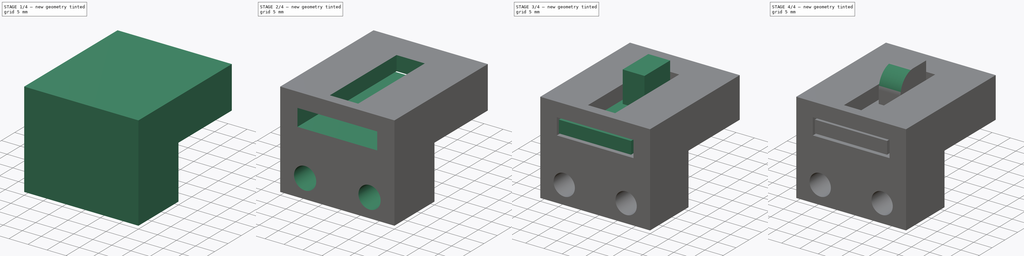
[diagram: build sequence overview — one tinted view per stage of 4, left to right]
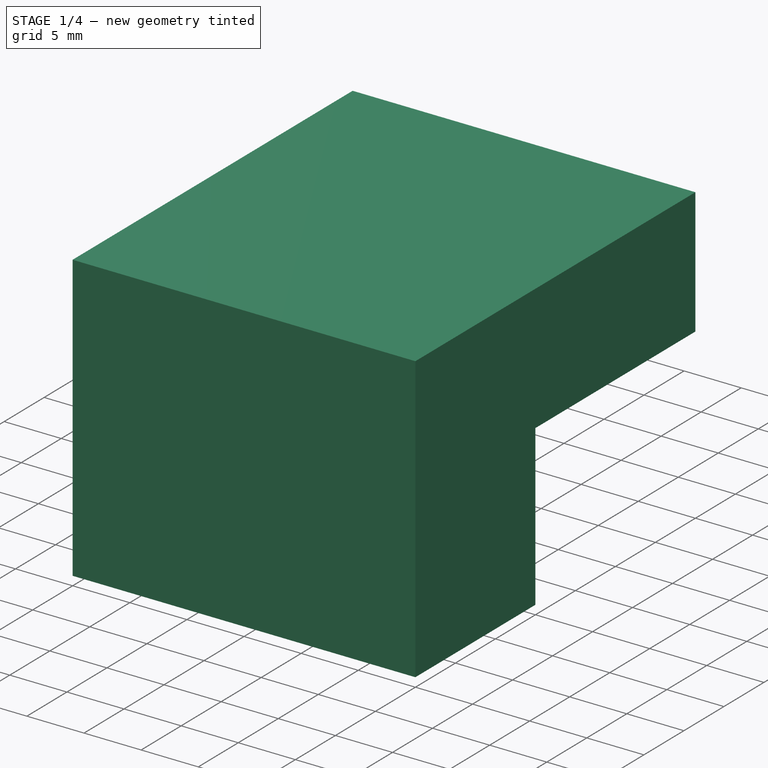
[diagram: stage 1 of 4 — iso view after this stage's code; geometry added in this stage tinted green]
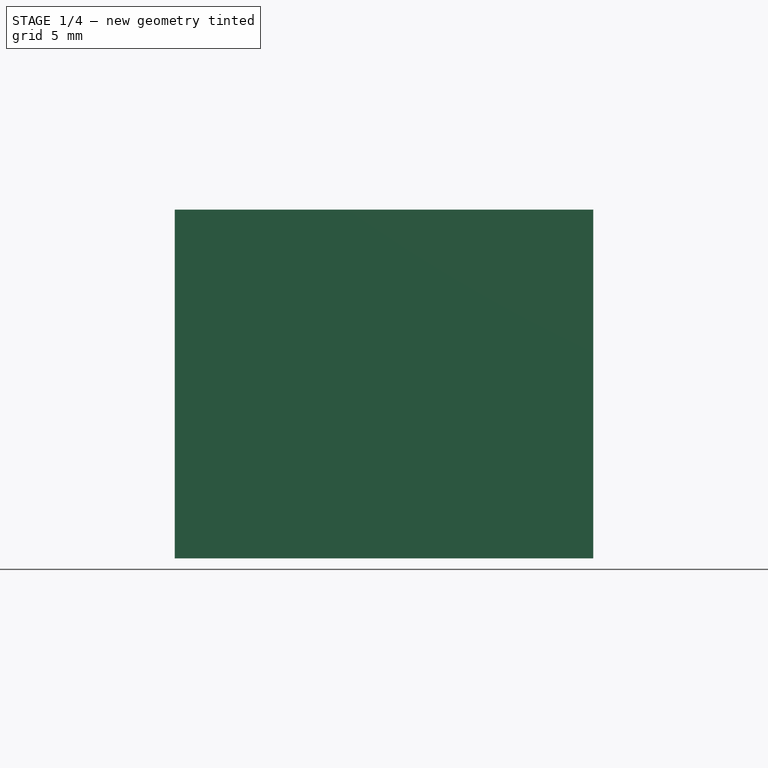
[diagram: stage 1 of 4 — front view after this stage's code; geometry added in this stage tinted green]
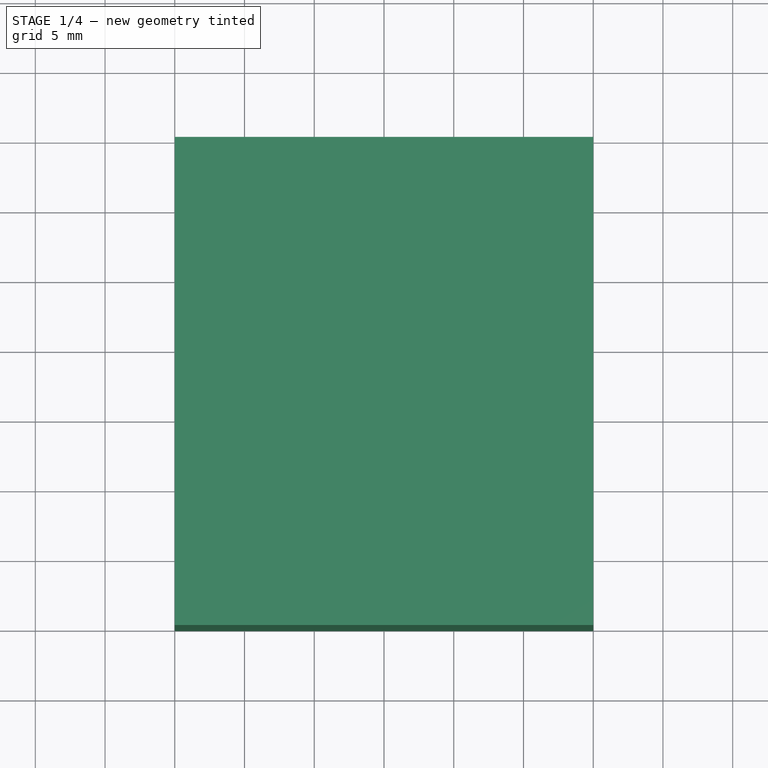
[diagram: stage 1 of 4 — top view after this stage's code; geometry added in this stage tinted green]
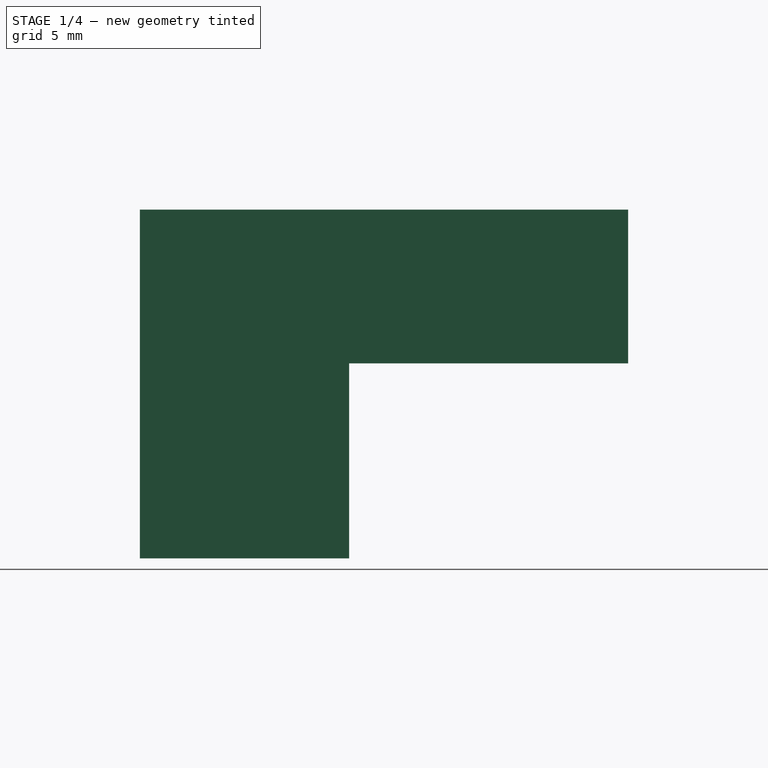
[diagram: stage 1 of 4 — right view after this stage's code; geometry added in this stage tinted green]
FCSTD DOCUMENT  (FreeCAD 0.16R6705 (Git))
Label: chiavistello
License: All rights reserved
LicenseURL: http://it.wikipedia.org/wiki/<copyright redacted>
objects: Sketcher::SketchObject×7, PartDesign::Pad×4, PartDesign::Pocket×3, Part::MultiFuse×2, PartDesign::Fillet×1
note: 24 computed .brp shape members not serialized (recipe doc carries the construction recipe); baked Part::Feature solids carry a one-line shape summary decoded from their .brp

FEATURE [Sketcher::SketchObject] Sketch
  sketch-geometry (4):
    g0: LineSegment StartX=-15 StartY=0 StartZ=0 EndX=15 EndY=0 EndZ=0
    g1: LineSegment StartX=15 StartY=0 StartZ=0 EndX=15 EndY=15 EndZ=0
    g2: LineSegment StartX=15 StartY=15 StartZ=0 EndX=-15 EndY=15 EndZ=0
    g3: LineSegment StartX=-15 StartY=15 StartZ=0 EndX=-15 EndY=0 EndZ=0
  constraints (12):
    c: Coincident(g0,g1)
    c: Coincident(g1,g2)
    c: Coincident(g2,g3)
    c: Coincident(g3,g0)
    c: Horizontal(g0)
    c: Horizontal(g2)
    c: Vertical(g1)
    c: Vertical(g3)
    c: DistanceX(g0,g0) = 30
    c: Symmetric(g0,g0,g-2)
    c: DistanceY(g0,g2) = 15
    c: PointOnObject(g0,g-1)
FEATURE [PartDesign::Pad] Pad
  Length = 25
  Length2 = 100
  Sketch = -> Sketch
  Type = 0
FEATURE [Sketcher::SketchObject] Sketch001
  ExternalGeometry = -> [Pad]
  Placement = pos=(0,15,0) rot=(0,0.707107,0.707107;3.14159rad)
  Support = -> Pad [Face3]
  sketch-geometry (4):
    g0: LineSegment StartX=-15 StartY=25 StartZ=0 EndX=15 EndY=25 EndZ=0
    g1: LineSegment StartX=15 StartY=25 StartZ=0 EndX=15 EndY=13.9789 EndZ=0
    g2: LineSegment StartX=15 StartY=13.9789 StartZ=0 EndX=-15 EndY=13.9789 EndZ=0
    g3: LineSegment StartX=-15 StartY=13.9789 StartZ=0 EndX=-15 EndY=25 EndZ=0
  constraints (10):
    c: Coincident(g0,g1)
    c: Coincident(g1,g2)
    c: Coincident(g2,g3)
    c: Coincident(g3,g0)
    c: Horizontal(g0)
    c: Horizontal(g2)
    c: Vertical(g1)
    c: Vertical(g3)
    c: PointOnObject(g1,g-4)
    c: PointOnObject(g2,g-5)
FEATURE [PartDesign::Pad] Pad001
  Length = 20
  Length2 = 100
  Sketch = -> Sketch001
  Type = 0
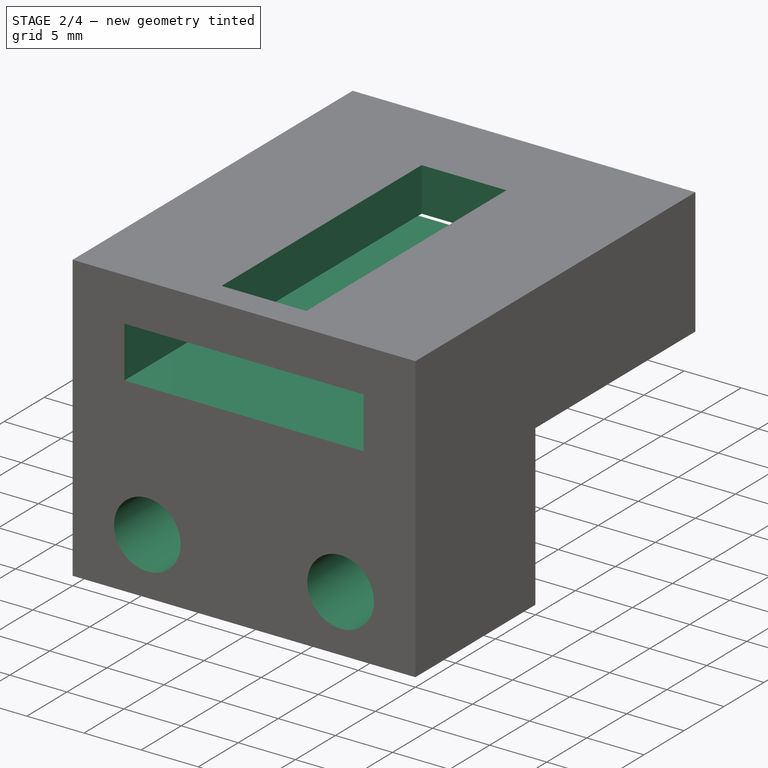
[diagram: stage 2 of 4 — iso view after this stage's code; geometry added in this stage tinted green]
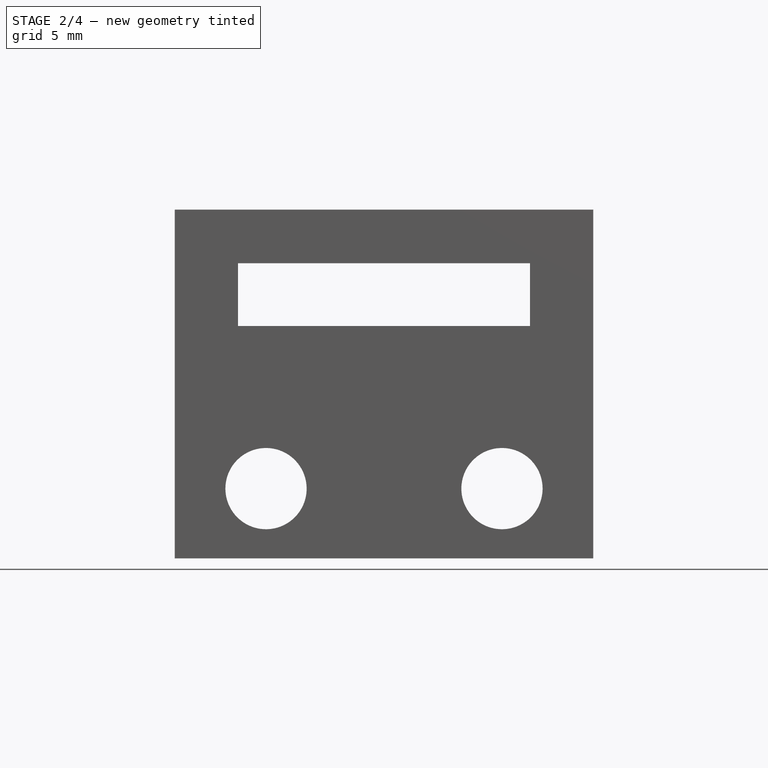
[diagram: stage 2 of 4 — front view after this stage's code; geometry added in this stage tinted green]
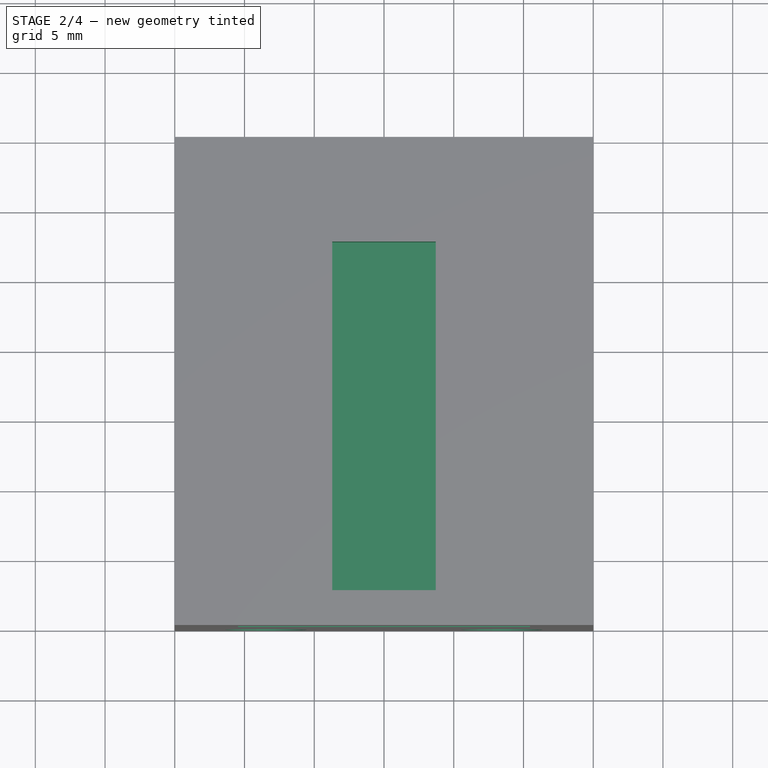
[diagram: stage 2 of 4 — top view after this stage's code; geometry added in this stage tinted green]
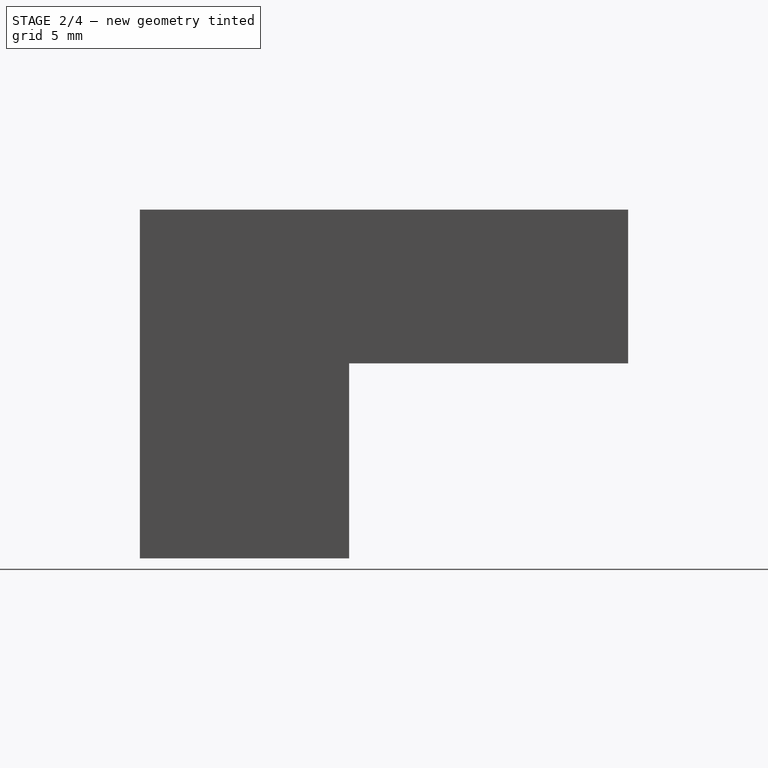
[diagram: stage 2 of 4 — right view after this stage's code; geometry added in this stage tinted green]
FEATURE [PartDesign::Pocket] Pocket
  Length = 25
  Midplane = true
  Sketch = -> Sketch002
  Type = 0
FEATURE [Sketcher::SketchObject] Sketch005
  ExternalGeometry = -> [Pocket]
  Placement = pos=(0,35,0) rot=(0,0.707107,0.707107;3.14159rad)
  Support = -> Pocket [Face16]
  sketch-geometry (4):
    g0: LineSegment StartX=-10.4717 StartY=21.1596 StartZ=0 EndX=10.4717 EndY=21.1596 EndZ=0
    g1: LineSegment StartX=10.4717 StartY=21.1596 StartZ=0 EndX=10.4717 EndY=16.6596 EndZ=0
    g2: LineSegment StartX=10.4717 StartY=16.6596 StartZ=0 EndX=-10.4717 EndY=16.6596 EndZ=0
    g3: LineSegment StartX=-10.4717 StartY=16.6596 StartZ=0 EndX=-10.4717 EndY=21.1596 EndZ=0
  constraints (8):
    c: Coincident(g0,g1)
    c: Coincident(g1,g2)
    c: Coincident(g2,g3)
    c: Coincident(g3,g0)
    c: Horizontal(g0)
    c: Horizontal(g2)
    c: Vertical(g1)
    c: Vertical(g3)
FEATURE [PartDesign::Pocket] Pocket001
  Length = 5
  Sketch = -> Sketch005
  Type = 1
FEATURE [Sketcher::SketchObject] Sketch006
  Placement = pos=(0,15,0) rot=(0,0.707107,0.707107;3.14159rad)
  Support = -> Pocket001 [Face10]
  sketch-geometry (2):
    g0: Circle CenterX=8.45863 CenterY=5 CenterZ=0 NormalX=0 NormalY=0 NormalZ=1 Radius=2.91181
    g1: Circle CenterX=-8.45863 CenterY=5 CenterZ=0 NormalX=0 NormalY=0 NormalZ=1 Radius=2.91181
  constraints (3):
    c: Equal(g1,g0)
    c: DistanceY(g-1,g1) = 5
    c: Symmetric(g1,g0,g-2)
FEATURE [PartDesign::Pocket] Pocket002
  Length = 5
  Sketch = -> Sketch006
  Type = 1
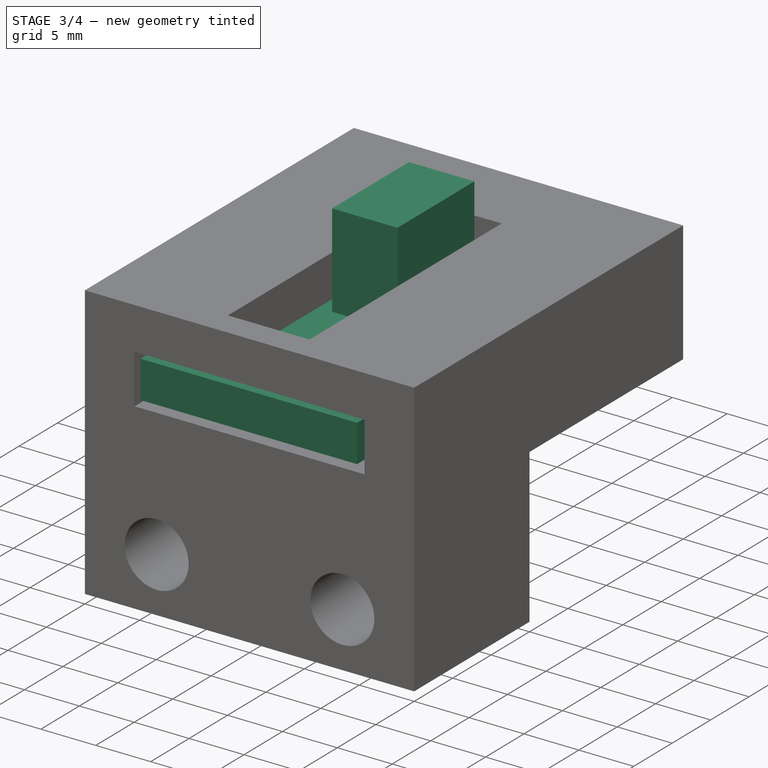
[diagram: stage 3 of 4 — iso view after this stage's code; geometry added in this stage tinted green]
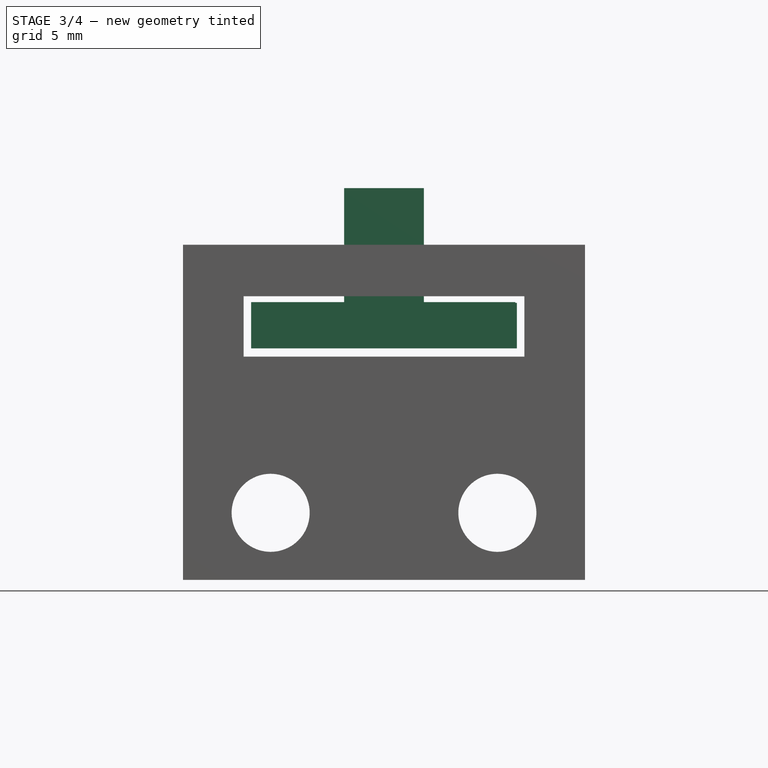
[diagram: stage 3 of 4 — front view after this stage's code; geometry added in this stage tinted green]
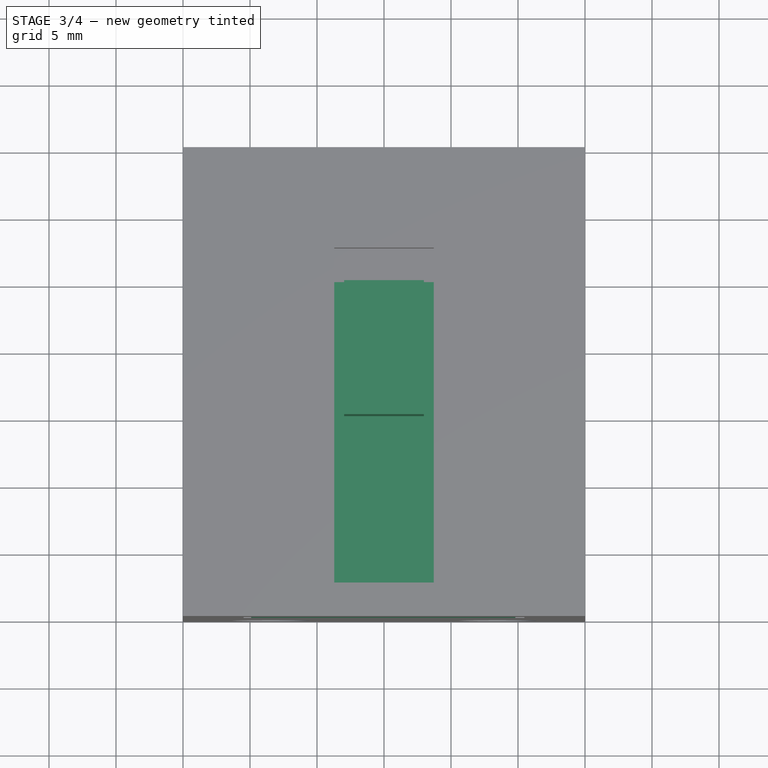
[diagram: stage 3 of 4 — top view after this stage's code; geometry added in this stage tinted green]
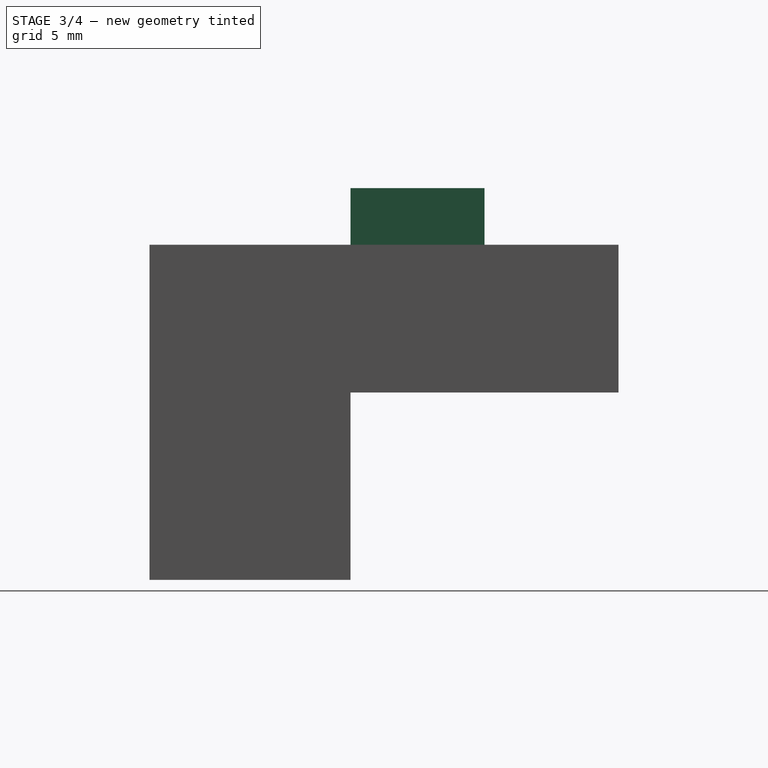
[diagram: stage 3 of 4 — right view after this stage's code; geometry added in this stage tinted green]
FEATURE [Sketcher::SketchObject] Sketch002
  Placement = pos=(0,15,0) rot=(0,0.707107,0.707107;3.14159rad)
  Support = -> Pad001 [Face6]
  sketch-geometry (8):
    g0: LineSegment StartX=-3.71123 StartY=27.7622 StartZ=0 EndX=-3.71123 EndY=21.1596 EndZ=0
    g1: LineSegment StartX=-3.71123 StartY=21.1596 StartZ=0 EndX=-10.4716 EndY=21.1596 EndZ=0
    g2: LineSegment StartX=-10.4716 StartY=21.1596 StartZ=0 EndX=-10.4716 EndY=16.6596 EndZ=0
    g3: LineSegment StartX=3.71123 StartY=27.7622 StartZ=0 EndX=3.71123 EndY=21.1596 EndZ=0
    g4: LineSegment StartX=3.71123 StartY=21.1596 StartZ=0 EndX=10.4716 EndY=21.1596 EndZ=0
    g5: LineSegment StartX=10.4716 StartY=21.1596 StartZ=0 EndX=10.4716 EndY=16.6596 EndZ=0
    g6: LineSegment StartX=-3.71123 StartY=27.7622 StartZ=0 EndX=3.71123 EndY=27.7622 EndZ=0
    g7: LineSegment StartX=-10.4716 StartY=16.6596 StartZ=0 EndX=10.4716 EndY=16.6596 EndZ=0
  constraints (19):
    c: Coincident(g0,g1)
    c: Coincident(g1,g2)
    c: Vertical(g0)
    c: Vertical(g2)
    c: Coincident(g3,g4)
    c: Coincident(g4,g5)
    c: Vertical(g3)
    c: Vertical(g5)
    c: Symmetric(g1,g4,g-2)
    c: Horizontal(g4)
    c: Horizontal(g1)
    c: Symmetric(g3,g0,g-2)
    c: Symmetric(g3,g0,g-2)
    c: Coincident(g6,g3)
    c: Coincident(g0,g6)
    c: Coincident(g2,g7)
    c: Coincident(g5,g7)
    c: Horizontal(g7)
    c: DistanceY(g5,g4) = 4.5
FEATURE [Sketcher::SketchObject] Sketch003
  Placement = pos=(0,15,0) rot=(-1,0,0;4.71239rad)
  sketch-geometry (8):
    g0: LineSegment StartX=-2.97727 StartY=29.225 StartZ=0 EndX=-2.97727 EndY=20.6674 EndZ=0
    g1: LineSegment StartX=-2.97727 StartY=20.6674 StartZ=0 EndX=-9.91131 EndY=20.6674 EndZ=0
    g2: LineSegment StartX=-9.91131 StartY=20.6674 StartZ=0 EndX=-9.91131 EndY=17.2674 EndZ=0
    g3: LineSegment StartX=2.97727 StartY=29.225 StartZ=0 EndX=2.97727 EndY=20.6674 EndZ=0
    g4: LineSegment StartX=2.97727 StartY=20.6674 StartZ=0 EndX=9.91131 EndY=20.6674 EndZ=0
    g5: LineSegment StartX=9.91131 StartY=20.6674 StartZ=0 EndX=9.91131 EndY=17.2674 EndZ=0
    g6: LineSegment StartX=-2.97727 StartY=29.225 StartZ=0 EndX=2.97727 EndY=29.225 EndZ=0
    g7: LineSegment StartX=-9.91131 StartY=17.2674 StartZ=0 EndX=9.91131 EndY=17.2674 EndZ=0
  constraints (19):
    c: Coincident(g0,g1)
    c: Coincident(g1,g2)
    c: Vertical(g0)
    c: Vertical(g2)
    c: Coincident(g3,g4)
    c: Coincident(g4,g5)
    c: Vertical(g3)
    c: Vertical(g5)
    c: Symmetric(g1,g4,g-2)
    c: Horizontal(g4)
    c: Horizontal(g1)
    c: Symmetric(g3,g0,g-2)
    c: Symmetric(g3,g0,g-2)
    c: Coincident(g6,g3)
    c: Coincident(g0,g6)
    c: Coincident(g2,g7)
    c: Coincident(g5,g7)
    c: Horizontal(g7)
    c: DistanceY(g5,g4) = 3.4
FEATURE [PartDesign::Pad] Pad002
  Length = 10
  Length2 = 100
  Placement = pos=(0,15,0) rot=(-1,0,0;4.71239rad)
  Reversed = true
  Sketch = -> Sketch003
  Type = 0
FEATURE [Sketcher::SketchObject] Sketch004
  Placement = pos=(0,20,0) rot=(-1,0,0;4.71239rad)
  sketch-geometry (4):
    g0: LineSegment StartX=-9.91623 StartY=20.7219 StartZ=0 EndX=9.80153 EndY=20.7219 EndZ=0
    g1: LineSegment StartX=9.80153 StartY=20.7219 StartZ=0 EndX=9.80153 EndY=17.3219 EndZ=0
    g2: LineSegment StartX=9.80153 StartY=17.3219 StartZ=0 EndX=-9.91623 EndY=17.3219 EndZ=0
    g3: LineSegment StartX=-9.91623 StartY=17.3219 StartZ=0 EndX=-9.91623 EndY=20.7219 EndZ=0
  constraints (9):
    c: Coincident(g0,g1)
    c: Coincident(g1,g2)
    c: Coincident(g2,g3)
    c: Coincident(g3,g0)
    c: Horizontal(g0)
    c: Horizontal(g2)
    c: Vertical(g1)
    c: Vertical(g3)
    c: DistanceY(g1,g0) = 3.4
FEATURE [PartDesign::Pad] Pad003
  Length = 20
  Length2 = 100
  Placement = pos=(0,20,0) rot=(-1,0,0;4.71239rad)
  Sketch = -> Sketch004
  Type = 0
FEATURE [Part::MultiFuse] Fusion
  Shapes = -> [Pad002,Pad003]
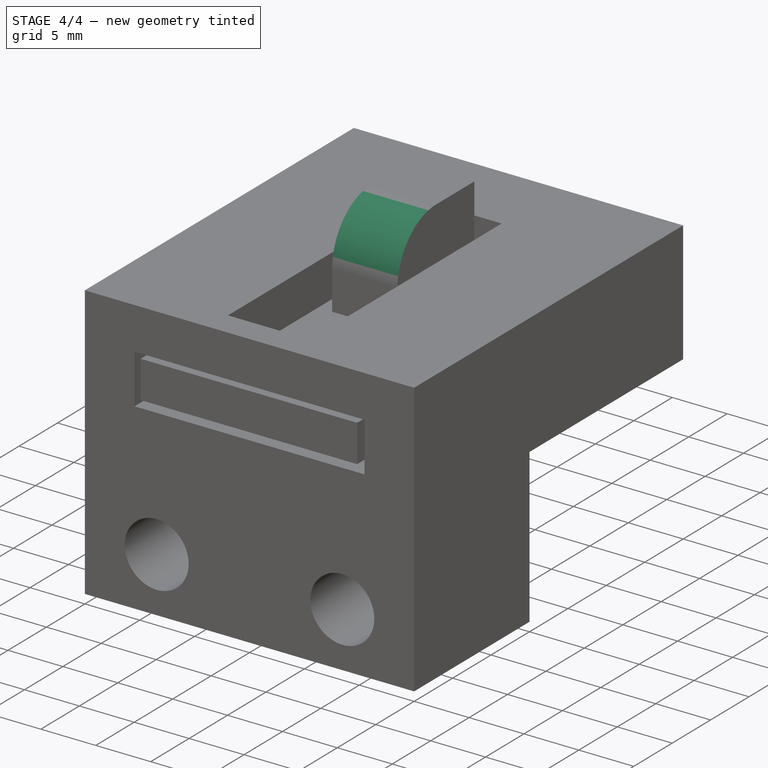
[diagram: stage 4 of 4 — iso view after this stage's code; geometry added in this stage tinted green]
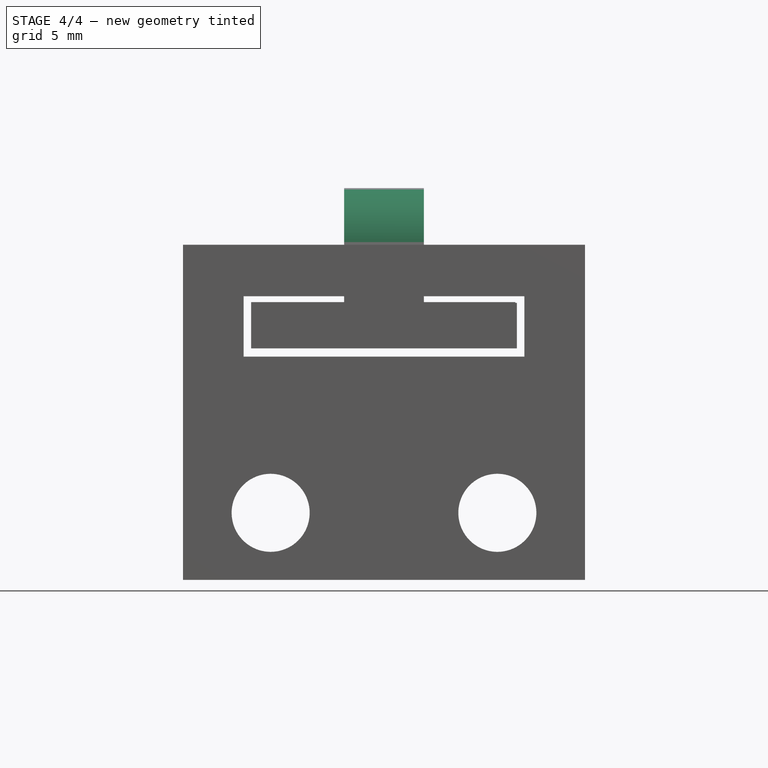
[diagram: stage 4 of 4 — front view after this stage's code; geometry added in this stage tinted green]
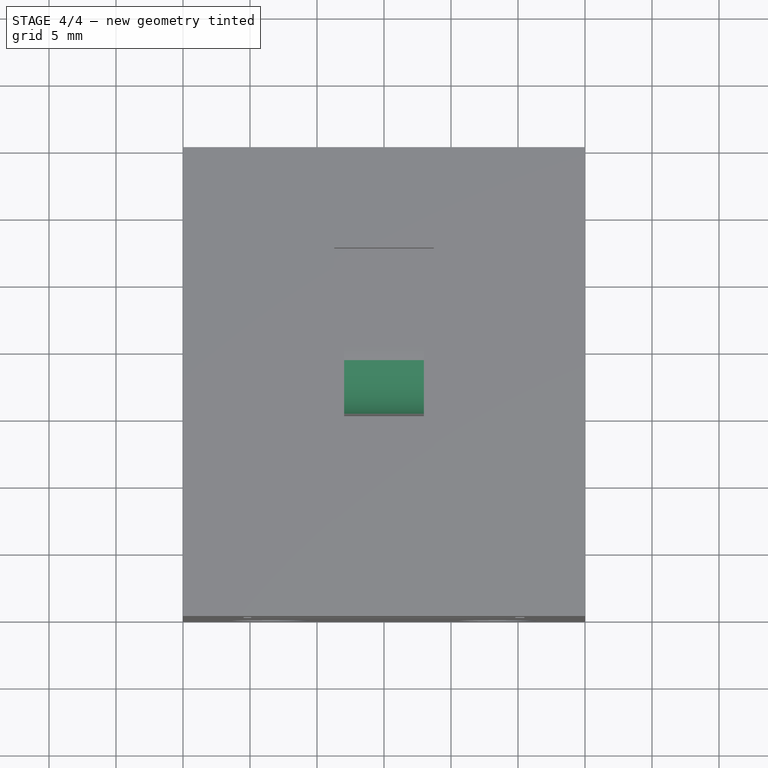
[diagram: stage 4 of 4 — top view after this stage's code; geometry added in this stage tinted green]
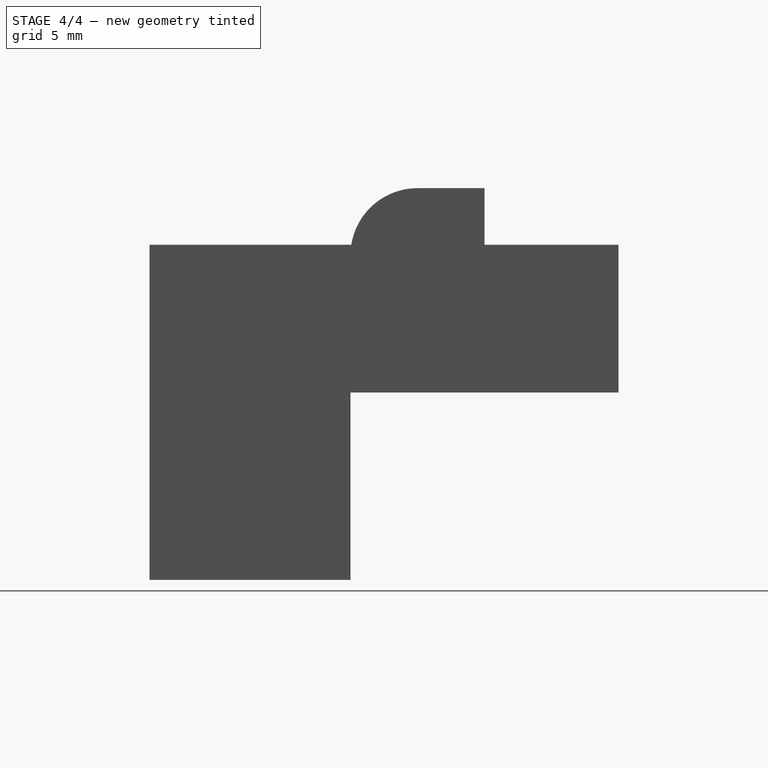
[diagram: stage 4 of 4 — right view after this stage's code; geometry added in this stage tinted green]
FEATURE [Part::MultiFuse] Fusion001
  Shapes = -> [Fusion,Pocket002]
FEATURE [PartDesign::Fillet] Fillet
  Base = -> Fusion001 [Edge3]
  Radius = 5
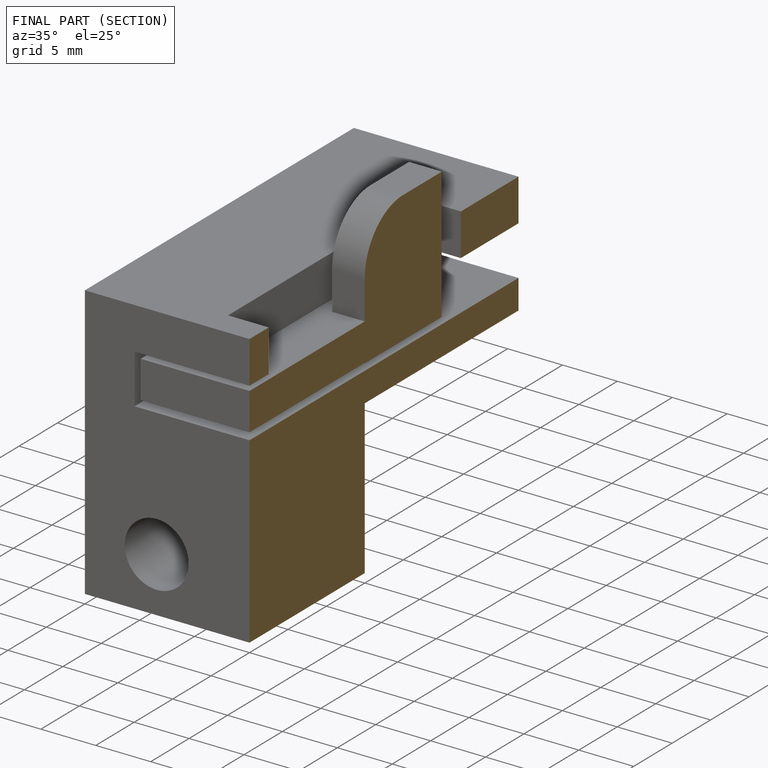
[diagram: finished part — half-section view (interior)]
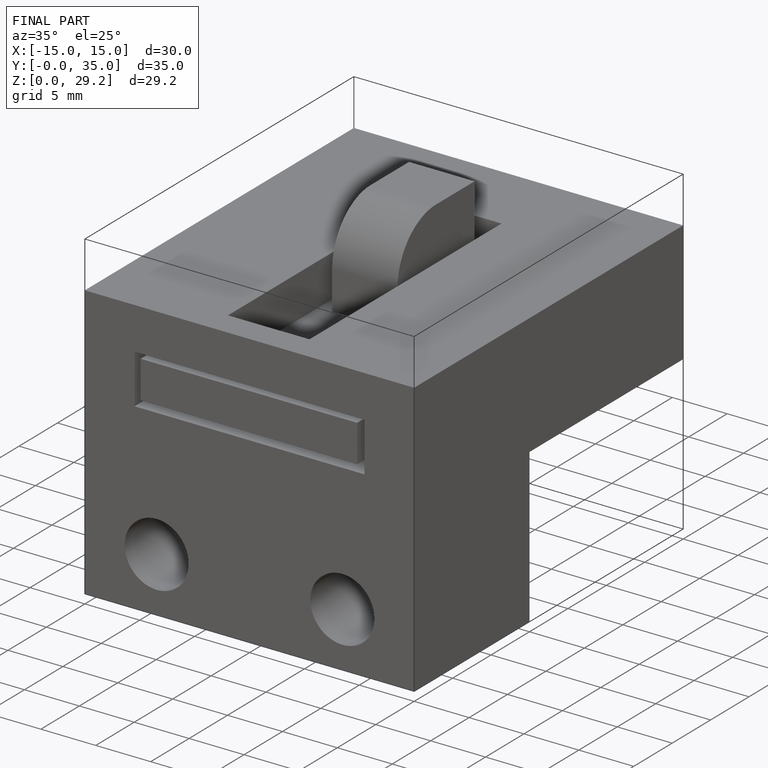
[diagram: finished part — iso view with bounding-box wireframe]
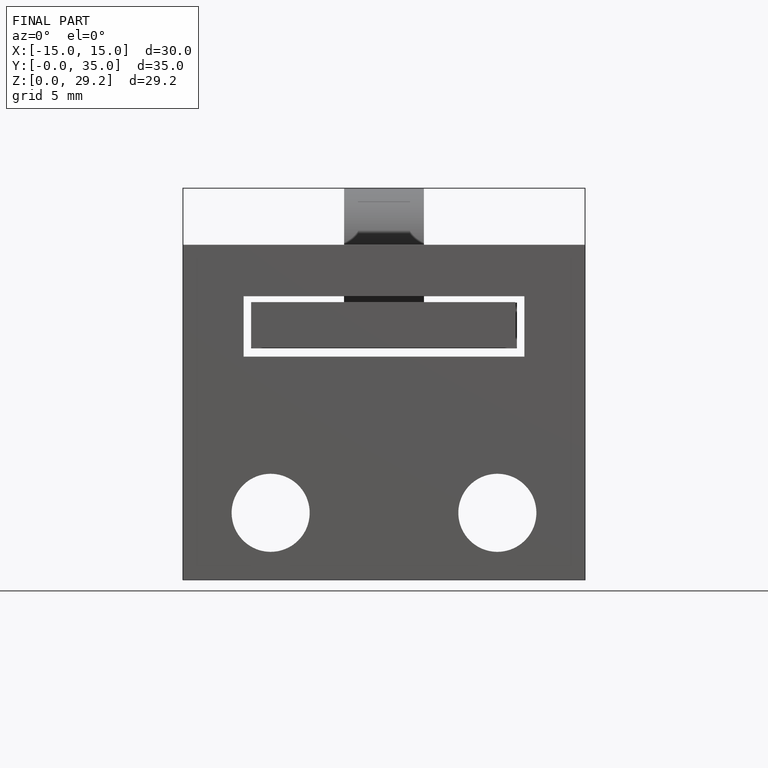
[diagram: finished part — front view with bounding-box wireframe]
